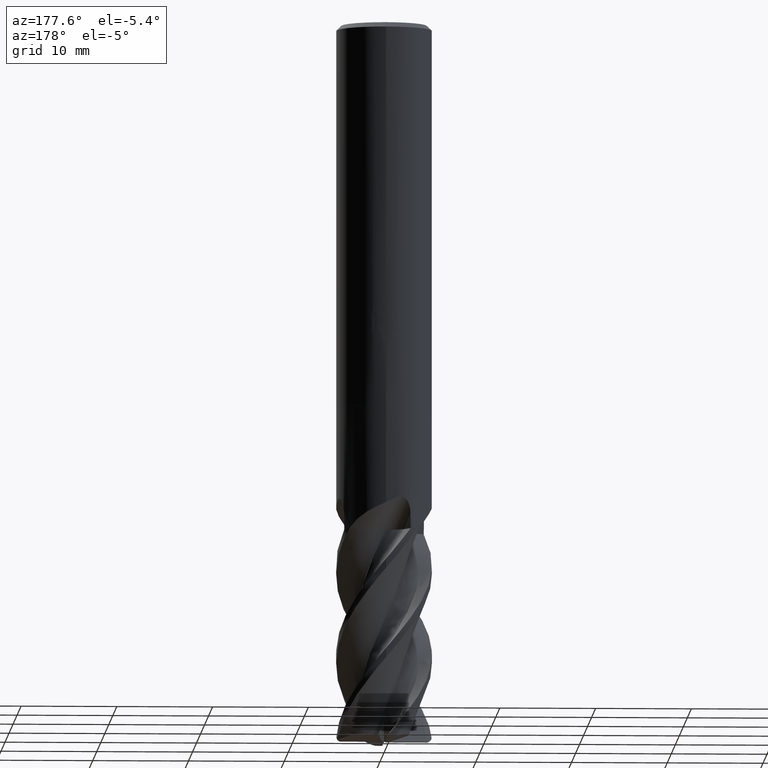
[diagram: clean part render]
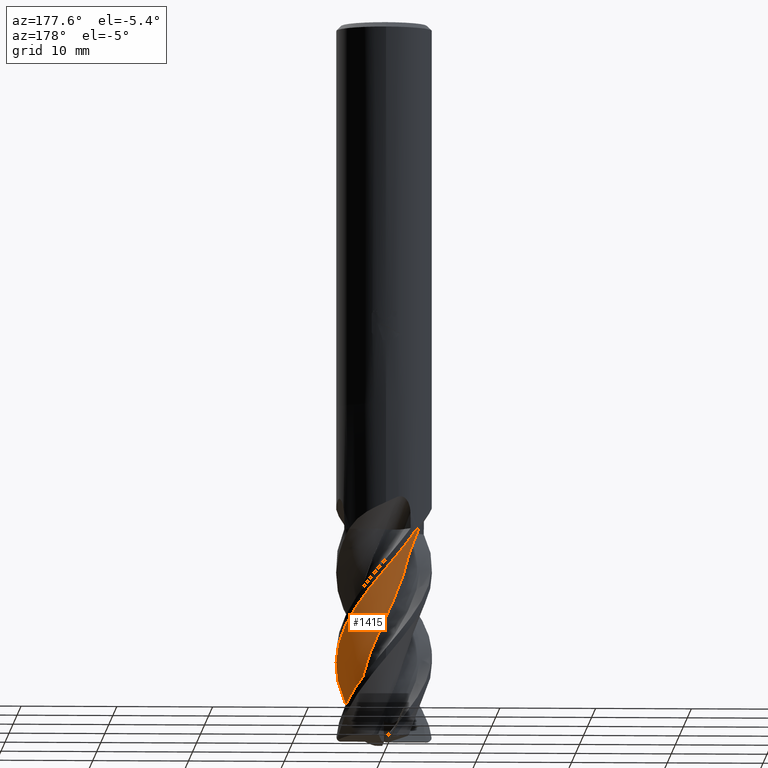
[diagram: same view with one face highlighted and labeled with its STEP entity id]
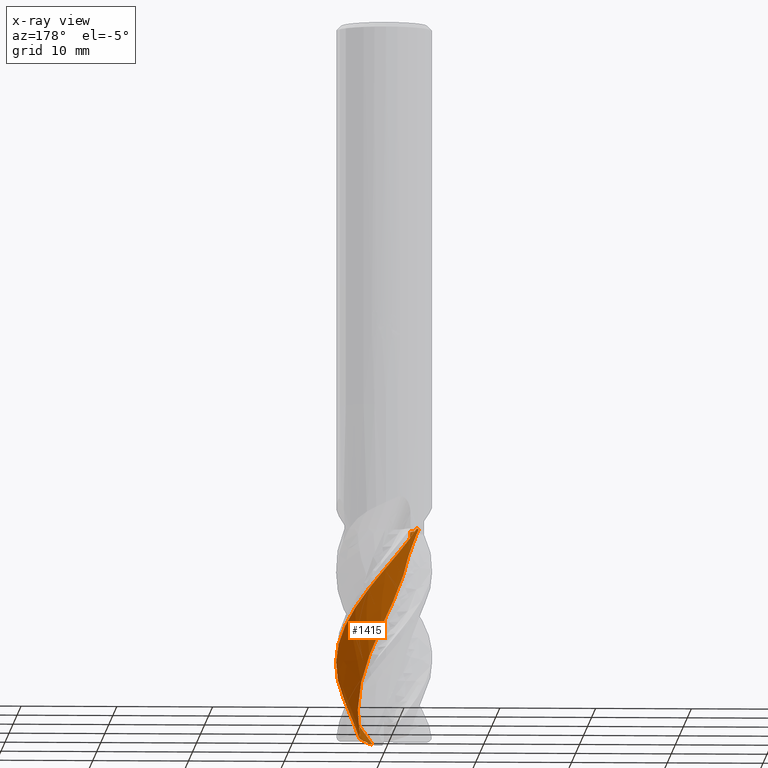
[diagram: x-ray of the same camera — body ghosted, the highlighted face saturated]
A machine part, auxiliary view. The second image highlights one B-rep face of the part: STEP entity #1415.
The next image is the same camera in x-ray: the body ghosted, the highlighted face saturated — about 0% of this face is hidden behind the body in this view.
In plain terms, the highlighted face is a freeform B-spline surface patch.
Its self-contained STEP definition (entity closure, byte-faithful):
#549=EDGE_CURVE('',#1233,#1143,#1584,.T.);
#579=EDGE_CURVE('',#1233,#877,#1616,.T.);
#603=EDGE_CURVE('',#811,#1163,#1643,.T.);
#673=EDGE_CURVE('',#1009,#823,#1720,.T.);
#811=VERTEX_POINT('',#1871);
#823=VERTEX_POINT('',#1883);
#877=VERTEX_POINT('',#1942);
#1009=VERTEX_POINT('',#2081);
#1053=VERTEX_POINT('',#2131);
#1067=EDGE_CURVE('',#823,#1143,#2146,.T.);
#1143=VERTEX_POINT('',#2231);
#1163=VERTEX_POINT('',#2252);
#1169=EDGE_CURVE('',#1053,#1009,#2260,.T.);
#1185=EDGE_CURVE('',#877,#811,#2277,.T.);
#1233=VERTEX_POINT('',#2329);
#1385=EDGE_CURVE('',#1163,#1053,#2500,.T.);
#1415=ADVANCED_FACE('',(#2532),#2533,.T.);
#1584=B_SPLINE_CURVE_WITH_KNOTS('',3,(#2762,#2763,#2764,#2765,#2766,#2767,#2768,#2769,#2770,#2771,#2772,#2773,#2774,#2775,#2776,#2777,#2778,#2779,#2780,#2781,#2782,#2783,#2784,#2785,#2786,#2787,#2788,#2789,#2790,#2791,#2792,#2793,#2794,#2795,#2796,#2797,#2798,#2799,#2800,#2801,#2802,#2803,#2804,#2805,#2806,#2807,#2808,#2809,#2810,#2811,#2812,#2813,#2814),.UNSPECIFIED.,.F.,.F.,(4,1,2,1,2,1,2,1,2,1,2,1,2,1,2,1,2,1,2,1,2,1,2,1,2,1,2,1,2,1,2,1,2,1,4),(0.0,0.658549239123413,1.31709847824683,1.97564771737024,2.63419695649365,3.95129543474048,5.2683939129873,6.58549239123413,7.90259086948096,9.21968934772778,10.5367878259746,11.8538863042214,13.1709847824683,14.4880832607151,15.8051817389619,17.1222802172087,18.4393786954556,19.7564771737024,21.0735756519492,22.390674130196,23.7077726084429,25.0248710866897,26.3419695649365,27.6590680431833,28.9761665214302,30.293264999677,31.6103634779238,32.9274619561707,34.2445604344175,35.5616589126643,36.8787573909111,38.195855869158,39.5129543474048,40.8300528256516,42.1471513038984),.UNSPECIFIED.);
#1616=B_SPLINE_CURVE_WITH_KNOTS('',3,(#3395,#3396,#3397,#3398,#3399,#3400,#3401,#3402),.UNSPECIFIED.,.F.,.F.,(4,2,2,4),(0.0,1.35356771246786,2.67881120581007,4.14397320528396),.UNSPECIFIED.);
#1643=B_SPLINE_CURVE_WITH_KNOTS('',3,(#3483,#3484,#3485,#3486,#3487,#3488,#3489,#3490,#3491,#3492,#3493,#3494,#3495,#3496,#3497,#3498,#3499,#3500,#3501,#3502,#3503,#3504,#3505,#3506,#3507,#3508,#3509,#3510,#3511,#3512,#3513,#3514,#3515,#3516,#3517,#3518,#3519,#3520,#3521,#3522),.UNSPECIFIED.,.F.,.F.,(4,2,2,2,2,2,2,2,2,2,2,2,2,2,2,2,2,2,2,4),(0.0,2.2456682764679,2.88459638196304,4.28304665093006,5.98188310676537,6.52038499764243,7.78764744862146,10.0926702157353,11.1932099832394,13.2199946943332,14.5397078260316,16.1797539945238,17.5713621634584,19.7414092903107,20.6562944861559,22.1265670036156,22.6811434000191,23.8996684143941,25.1948273827751,26.5129071272812),.UNSPECIFIED.);
#1720=B_SPLINE_CURVE_WITH_KNOTS('',3,(#4220,#4221,#4222,#4223,#4224,#4225,#4226,#4227),.UNSPECIFIED.,.F.,.F.,(4,2,2,4),(0.0,1.55395800995072,2.99564373161464,4.43728701716926),.UNSPECIFIED.);
#1871=CARTESIAN_POINT('',(1.21282587753809,-4.85067556024663,-74.5));
#1883=CARTESIAN_POINT('',(-3.51485827910795,2.68852362562381,-53.0));
#1942=CARTESIAN_POINT('',(1.14413936483831,-4.72098230904481,-74.8494124073381));
#2081=CARTESIAN_POINT('',(-3.27735574731752,3.75916761069031,-53.0));
#2131=CARTESIAN_POINT('',(-3.26797763358509,3.78408802703999,-53.0));
#2146=B_SPLINE_CURVE_WITH_KNOTS('',3,(#7376,#7377,#7378,#7379,#7380,#7381,#7382,#7383),.UNSPECIFIED.,.F.,.F.,(4,2,2,4),(0.0,1.55395800995072,2.99564373161464,4.43728701716926),.UNSPECIFIED.);
#2231=CARTESIAN_POINT('',(-2.73875652295535,-0.00705434222565993,-53.0));
#2252=CARTESIAN_POINT('',(-3.29536953540391E-016,4.999919712407,-57.2381675055824));
#2260=B_SPLINE_CURVE_WITH_KNOTS('',3,(#7868,#7869,#7870,#7871,#7872,#7873,#7874,#7875),.UNSPECIFIED.,.F.,.F.,(4,2,2,4),(0.0,1.55395800995072,2.99564373161464,4.43728701716926),.UNSPECIFIED.);
#2277=B_SPLINE_CURVE_WITH_KNOTS('',3,(#7937,#7938,#7939,#7940,#7941,#7942,#7943,#7944,#7945,#7946,#7947,#7948,#7949,#7950,#7951,#7952,#7953,#7954,#7955,#7956,#7957,#7958),.UNSPECIFIED.,.F.,.F.,(4,2,2,2,2,2,2,2,2,2,4),(0.0,0.602373743548234,1.11069060328894,1.4293281599703,1.62629304112746,1.7529199232569,1.91069403200639,2.02791076422509,2.08273615207542,2.10502879621802,2.12619765103558),.UNSPECIFIED.);
#2329=CARTESIAN_POINT('',(2.46460790427425,-1.19390406016006,-74.4203661706195));
#2500=B_SPLINE_CURVE_WITH_KNOTS('',3,(#9251,#9252,#9253,#9254,#9255,#9256,#9257,#9258,#9259,#9260,#9261,#9262,#9263,#9264,#9265,#9266,#9267,#9268,#9269,#9270,#9271,#9272,#9273,#9274,#9275,#9276,#9277,#9278,#9279,#9280,#9281,#9282,#9283,#9284,#9285,#9286,#9287,#9288,#9289,#9290),.UNSPECIFIED.,.F.,.F.,(4,2,2,2,2,2,2,2,2,2,2,2,2,2,2,2,2,2,2,4),(0.0,2.2456682764679,2.88459638196304,4.28304665093006,5.98188310676537,6.52038499764243,7.78764744862146,10.0926702157353,11.1932099832394,13.2199946943332,14.5397078260316,16.1797539945238,17.5713621634584,19.7414092903107,20.6562944861559,22.1265670036156,22.6811434000191,23.8996684143941,25.1948273827751,26.5129071272812),.UNSPECIFIED.);
#2532=FACE_OUTER_BOUND('',#9857,.T.);
#2533=B_SPLINE_SURFACE_WITH_KNOTS('',3,3,((#9858,#9859,#9860,#9861,#9862,#9863,#9864,#9865,#9866,#9867,#9868,#9869,#9870,#9871,#9872,#9873,#9874,#9875,#9876,#9877,#9878,#9879,#9880,#9881,#9882,#9883,#9884,#9885,#9886,#9887,#9888,#9889,#9890,#9891,#9892,#9893,#9894,#9895,#9896,#9897,#9898,#9899,#9900,#9901,#9902,#9903,#9904,#9905,#9906,#9907,#9908,#9909,#9910),(#9911,#9912,#9913,#9914,#9915,#9916,#9917,#9918,#9919,#9920,#9921,#9922,#9923,#9924,#9925,#9926,#9927,#9928,#9929,#9930,#9931,#9932,#9933,#9934,#9935,#9936,#9937,#9938,#9939,#9940,#9941,#9942,#9943,#9944,#9945,#9946,#9947,#9948,#9949,#9950,#9951,#9952,#9953,#9954,#9955,#9956,#9957,#9958,#9959,#9960,#9961,#9962,#9963),(#9964,#9965,#9966,#9967,#9968,#9969,#9970,#9971,#9972,#9973,#9974,#9975,#9976,#9977,#9978,#9979,#9980,#9981,#9982,#9983,#9984,#9985,#9986,#9987,#9988,#9989,#9990,#9991,#9992,#9993,#9994,#9995,#9996,#9997,#9998,#9999,#10000,#10001,#10002,#10003,#10004,#10005,#10006,#10007,#10008,#10009,#10010,#10011,#10012,#10013,#10014,#10015,#10016),(#10017,#10018,#10019,#10020,#10021,#10022,#10023,#10024,#10025,#10026,#10027,#10028,#10029,#10030,#10031,#10032,#10033,#10034,#10035,#10036,#10037,#10038,#10039,#10040,#10041,#10042,#10043,#10044,#10045,#10046,#10047,#10048,#10049,#10050,#10051,#10052,#10053,#10054,#10055,#10056,#10057,#10058,#10059,#10060,#10061,#10062,#10063,#10064,#10065,#10066,#10067,#10068,#10069),(#10070,#10071,#10072,#10073,#10074,#10075,#10076,#10077,#10078,#10079,#10080,#10081,#10082,#10083,#10084,#10085,#10086,#10087,#10088,#10089,#10090,#10091,#10092,#10093,#10094,#10095,#10096,#10097,#10098,#10099,#10100,#10101,#10102,#10103,#10104,#10105,#10106,#10107,#10108,#10109,#10110,#10111,#10112,#10113,#10114,#10115,#10116,#10117,#10118,#10119,#10120,#10121,#10122),(#10123,#10124,#10125,#10126,#10127,#10128,#10129,#10130,#10131,#10132,#10133,#10134,#10135,#10136,#10137,#10138,#10139,#10140,#10141,#10142,#10143,#10144,#10145,#10146,#10147,#10148,#10149,#10150,#10151,#10152,#10153,#10154,#10155,#10156,#10157,#10158,#10159,#10160,#10161,#10162,#10163,#10164,#10165,#10166,#10167,#10168,#10169,#10170,#10171,#10172,#10173,#10174,#10175)),.UNSPECIFIED.,.F.,.F.,.F.,(4,1,1,4),(4,1,2,1,2,1,2,1,2,1,2,1,2,1,2,1,2,1,2,1,2,1,2,1,2,1,2,1,2,1,2,1,2,1,4),(-1.11221997675852,-0.695137485474076,-0.27805499418963,0.0),(0.0,0.658549239123413,1.31709847824683,1.97564771737024,2.63419695649365,3.95129543474048,5.2683939129873,6.58549239123413,7.90259086948096,9.21968934772778,10.5367878259746,11.8538863042214,13.1709847824683,14.4880832607151,15.8051817389619,17.1222802172087,18.4393786954556,19.7564771737024,21.0735756519492,22.390674130196,23.7077726084429,25.0248710866897,26.3419695649365,27.6590680431833,28.9761665214302,30.293264999677,31.6103634779238,32.9274619561707,34.2445604344175,35.5616589126643,36.8787573909111,38.195855869158,39.5129543474048,40.8300528256516,42.1471513038984),.UNSPECIFIED.);
#2762=CARTESIAN_POINT('',(-1.54516668842389,-2.28963209410875,-85.0));
#2763=CARTESIAN_POINT('',(-1.53885538904449,-2.27711614484176,-84.7812292667592));
#2764=CARTESIAN_POINT('',(-1.47842498813173,-2.29675630574485,-84.3442583540667));
#2765=CARTESIAN_POINT('',(-1.31093493866085,-2.39618950954364,-83.9074373138978));
#2766=CARTESIAN_POINT('',(-1.07979869520854,-2.51729300989652,-83.4693852564669));
#2767=CARTESIAN_POINT('',(-0.857556969136176,-2.61088868514889,-83.0311268200588));
#2768=CARTESIAN_POINT('',(-0.658984443971673,-2.663402519449,-82.5933388644091));
#2769=CARTESIAN_POINT('',(-0.378189797661917,-2.72058278647042,-81.9374989838115));
#2770=CARTESIAN_POINT('',(0.00386652439016535,-2.7580081583736,-81.0630484563422));
#2771=CARTESIAN_POINT('',(0.403491898813342,-2.71497573896403,-80.188337908122));
#2772=CARTESIAN_POINT('',(0.809094021887897,-2.6247684682505,-79.3130007471608));
#2773=CARTESIAN_POINT('',(1.19014872501744,-2.49052016510919,-78.4375967378449));
#2774=CARTESIAN_POINT('',(1.53027237350597,-2.27972701751446,-77.5626664026407));
#2775=CARTESIAN_POINT('',(1.85218991653991,-2.02805513031576,-76.6877877926039));
#2776=CARTESIAN_POINT('',(2.13717517093477,-1.74633615326569,-75.8127657583193));
#2777=CARTESIAN_POINT('',(2.35579931939123,-1.41017247918134,-74.9378827295317));
#2778=CARTESIAN_POINT('',(2.54021924642646,-1.04460548315103,-74.0628467444434));
#2779=CARTESIAN_POINT('',(2.6778407527134,-0.668162625868259,-73.187710994094));
#2780=CARTESIAN_POINT('',(2.73217189782097,-0.271168857998938,-72.3128225416456));
#2781=CARTESIAN_POINT('',(2.74312192269017,0.138212789014099,-71.4378306420857));
#2782=CARTESIAN_POINT('',(2.70710035541623,0.537586913149116,-70.5627231251657));
#2783=CARTESIAN_POINT('',(2.58691711963676,0.919911491493806,-69.6878339859729));
#2784=CARTESIAN_POINT('',(2.42227687267091,1.29476327642032,-68.8128319980391));
#2785=CARTESIAN_POINT('',(2.21943888833463,1.64054932391917,-67.9377190255422));
#2786=CARTESIAN_POINT('',(1.94772410072545,1.93512151942855,-67.0628304623835));
#2787=CARTESIAN_POINT('',(1.63893299528151,2.20402171758877,-66.1878298185554));
#2788=CARTESIAN_POINT('',(1.3079824728976,2.43033018651714,-65.31271741827));
#2789=CARTESIAN_POINT('',(0.936581148859283,2.58092069188909,-64.4378288135361));
#2790=CARTESIAN_POINT('',(0.542600027181607,2.69247430005632,-63.5628282618585));
#2791=CARTESIAN_POINT('',(0.146740956217836,2.75605007829402,-62.6877157987768));
#2792=CARTESIAN_POINT('',(-0.253408844955223,2.73388690469318,-61.8128272057936));
#2793=CARTESIAN_POINT('',(-0.657332636238802,2.66678787803254,-60.9378268916048));
#2794=CARTESIAN_POINT('',(-1.0424991061575,2.55549300668879,-60.0627145914269));
#2795=CARTESIAN_POINT('',(-1.39498826407193,2.36481764871812,-59.1878258807344));
#2796=CARTESIAN_POINT('',(-1.73172930702795,2.1318891964406,-58.3128253117123));
#2797=CARTESIAN_POINT('',(-2.03265704497206,1.86698528707705,-57.4377129302223));
#2798=CARTESIAN_POINT('',(-2.27018092531175,1.54421744114839,-56.5628246170929));
#2799=CARTESIAN_POINT('',(-2.47544600581518,1.18994558471829,-55.6878247254426));
#2800=CARTESIAN_POINT('',(-2.63469794289289,0.822004028953707,-54.8127124629295));
#2801=CARTESIAN_POINT('',(-2.71192433318979,0.428729992164942,-53.9378215030608));
#2802=CARTESIAN_POINT('',(-2.74652734928208,0.0207167174466705,-53.0628170450319));
#2803=CARTESIAN_POINT('',(-2.73366457611202,-0.379984478908915,-52.1877048074863));
#2804=CARTESIAN_POINT('',(-2.63582336092695,-0.768629248080088,-51.3128259144743));
#2805=CARTESIAN_POINT('',(-2.49312494489055,-1.15249769622584,-50.4378393320511));
#2806=CARTESIAN_POINT('',(-2.31057967067948,-1.50953827158079,-49.5627238537622));
#2807=CARTESIAN_POINT('',(-2.05648064378277,-1.81908525907831,-48.6878030561922));
#2808=CARTESIAN_POINT('',(-1.76416971665897,-2.10495701066665,-47.8127628479189));
#2809=CARTESIAN_POINT('',(-1.44709763308097,-2.35006214373195,-46.9376674171375));
#2810=CARTESIAN_POINT('',(-1.08360367373984,-2.52294632356871,-46.0628595544773));
#2811=CARTESIAN_POINT('',(-0.6939849794459,-2.65816445230631,-45.1879348089067));
#2812=CARTESIAN_POINT('',(-0.30229282939794,-2.74355809532533,-44.3127512181268));
#2813=CARTESIAN_POINT('',(0.0903922227422046,-2.74317943762858,-43.437772565622));
#2814=CARTESIAN_POINT('',(0.288064731595738,-2.72188458600727,-43.0002995630552));
#3395=CARTESIAN_POINT('',(2.46460790427425,-1.19390406016005,-74.4203661706195));
#3396=CARTESIAN_POINT('',(2.55648147290414,-1.63463057564325,-74.3905146386085));
#3397=CARTESIAN_POINT('',(2.56841950733228,-2.08617616134088,-74.3866357362034));
#3398=CARTESIAN_POINT('',(2.41792712454261,-2.96390378774281,-74.4355336755048));
#3399=CARTESIAN_POINT('',(2.26184622076031,-3.37402649899353,-74.486247435233));
#3400=CARTESIAN_POINT('',(1.78178253560446,-4.15423576786908,-74.6422295819863));
#3401=CARTESIAN_POINT('',(1.45058699658064,-4.50168189143142,-74.7498415359211));
#3402=CARTESIAN_POINT('',(1.06713389811704,-4.77795838050743,-74.8744330001935));
#3483=CARTESIAN_POINT('',(1.21282587753807,-4.85067556024663,-74.5));
#3484=CARTESIAN_POINT('',(1.68461487075908,-4.73271031464507,-73.9309344766993));
#3485=CARTESIAN_POINT('',(2.13289682949824,-4.54749943741901,-73.348582572322));
#3486=CARTESIAN_POINT('',(2.6620725517447,-4.23459839635782,-72.6109327372843));
#3487=CARTESIAN_POINT('',(2.77677043536298,-4.16031578539923,-72.4476608082026));
#3488=CARTESIAN_POINT('',(3.13342181089695,-3.90787679230616,-71.9289264563861));
#3489=CARTESIAN_POINT('',(3.36039429320089,-3.71455306522135,-71.5835687887609));
#3490=CARTESIAN_POINT('',(3.82624451607814,-3.23927839528752,-70.7889538006054));
#3491=CARTESIAN_POINT('',(4.05237548845392,-2.95147126200266,-70.3482077708845));
#3492=CARTESIAN_POINT('',(4.30624849675544,-2.5434975920939,-69.7741183381611));
#3493=CARTESIAN_POINT('',(4.36413058040529,-2.44288651619288,-69.6361336064954));
#3494=CARTESIAN_POINT('',(4.5468518625251,-2.09784823978402,-69.1749579855758));
#3495=CARTESIAN_POINT('',(4.6546742528047,-1.84660646812593,-68.8562928379187));
#3496=CARTESIAN_POINT('',(4.90132363035974,-1.10853722349132,-67.9254959342216));
#3497=CARTESIAN_POINT('',(4.98876239927978,-0.608206829745712,-67.3144128452927));
#3498=CARTESIAN_POINT('',(5.00382331794888,0.142095069803362,-66.4330333733355));
#3499=CARTESIAN_POINT('',(4.99117070950757,0.386251935577487,-66.1453934901602));
#3500=CARTESIAN_POINT('',(4.90219272724183,1.08452804000454,-65.3026880332056));
#3501=CARTESIAN_POINT('',(4.78258035091283,1.5292232241987,-64.7486141284904));
#3502=CARTESIAN_POINT('',(4.4855681547616,2.22914525680205,-63.8519294569241));
#3503=CARTESIAN_POINT('',(4.34400691085948,2.49417346103154,-63.5005094886225));
#3504=CARTESIAN_POINT('',(3.97061170865398,3.06194066432396,-62.6858303759184));
#3505=CARTESIAN_POINT('',(3.72818914558875,3.35314200894495,-62.229874346777));
#3506=CARTESIAN_POINT('',(3.2218750745632,3.83695817759101,-61.398611565827));
#3507=CARTESIAN_POINT('',(2.97044399776156,4.03479458397031,-61.0278226034985));
#3508=CARTESIAN_POINT('',(2.27658296177822,4.47981452200203,-60.0417754629577));
#3509=CARTESIAN_POINT('',(1.81280996529519,4.68735122729481,-59.4305583567738));
#3510=CARTESIAN_POINT('',(1.11612687723087,4.87846507344828,-58.5823712953303));
#3511=CARTESIAN_POINT('',(0.904721469940956,4.92226842257157,-58.3285314168885));
#3512=CARTESIAN_POINT('',(0.338975103702527,5.00082763666641,-57.64593784219));
#3513=CARTESIAN_POINT('',(-0.0138715962275309,5.01227943039543,-57.220781129511));
#3514=CARTESIAN_POINT('',(-0.497422522248474,4.9768839524797,-56.6413267120745));
#3515=CARTESIAN_POINT('',(-0.629938941803916,4.96188002411728,-56.4828614715512));
#3516=CARTESIAN_POINT('',(-1.05286791718865,4.89664113508756,-55.9782493085683));
#3517=CARTESIAN_POINT('',(-1.33907945476786,4.82642427289013,-55.6335073454247));
#3518=CARTESIAN_POINT('',(-1.91926221068308,4.62767435010724,-54.8984278917671));
#3519=CARTESIAN_POINT('',(-2.20814941359164,4.49704885464521,-54.5167631546108));
#3520=CARTESIAN_POINT('',(-2.76279212633812,4.1797007017224,-53.7537187845359));
#3521=CARTESIAN_POINT('',(-3.02418297191448,3.99463397881083,-53.3832972272639));
#3522=CARTESIAN_POINT('',(-3.26797763358505,3.78408802704005,-53.0));
#4220=CARTESIAN_POINT('',(-3.09328565480652,4.17795578713016,-53.0));
#4221=CARTESIAN_POINT('',(-3.32863304226522,3.71652203581955,-53.0));
#4222=CARTESIAN_POINT('',(-3.47160343900252,3.21353291675498,-53.0));
#4223=CARTESIAN_POINT('',(-3.55361305107733,2.21835913436387,-53.0));
#4224=CARTESIAN_POINT('',(-3.50596477395292,1.73621024299966,-53.0));
#4225=CARTESIAN_POINT('',(-3.24106465959036,0.812328196172827,-53.0));
#4226=CARTESIAN_POINT('',(-3.02599776105416,0.378196692979864,-53.0));
#4227=CARTESIAN_POINT('',(-2.73875652295535,-0.00705434222566426,-53.0));
#7376=CARTESIAN_POINT('',(-3.09328565480652,4.17795578713016,-53.0));
#7377=CARTESIAN_POINT('',(-3.32863304226522,3.71652203581955,-53.0));
#7378=CARTESIAN_POINT('',(-3.47160343900252,3.21353291675498,-53.0));
#7379=CARTESIAN_POINT('',(-3.55361305107733,2.21835913436387,-53.0));
#7380=CARTESIAN_POINT('',(-3.50596477395292,1.73621024299966,-53.0));
#7381=CARTESIAN_POINT('',(-3.24106465959036,0.812328196172827,-53.0));
#7382=CARTESIAN_POINT('',(-3.02599776105416,0.378196692979864,-53.0));
#7383=CARTESIAN_POINT('',(-2.73875652295535,-0.00705434222566426,-53.0));
#7868=CARTESIAN_POINT('',(-3.09328565480652,4.17795578713016,-53.0));
#7869=CARTESIAN_POINT('',(-3.32863304226522,3.71652203581955,-53.0));
#7870=CARTESIAN_POINT('',(-3.47160343900252,3.21353291675498,-53.0));
#7871=CARTESIAN_POINT('',(-3.55361305107733,2.21835913436387,-53.0));
#7872=CARTESIAN_POINT('',(-3.50596477395292,1.73621024299966,-53.0));
#7873=CARTESIAN_POINT('',(-3.24106465959036,0.812328196172827,-53.0));
#7874=CARTESIAN_POINT('',(-3.02599776105416,0.378196692979864,-53.0));
#7875=CARTESIAN_POINT('',(-2.73875652295535,-0.00705434222566426,-53.0));
#7937=CARTESIAN_POINT('',(1.87425986986043,-3.7550147002263,-74.8975667238081));
#7938=CARTESIAN_POINT('',(1.75975822809468,-3.90679340357556,-74.9621401274313));
#7939=CARTESIAN_POINT('',(1.63306952872999,-4.07234242912262,-74.9979945889831));
#7940=CARTESIAN_POINT('',(1.40471313825268,-4.36266487246737,-75.0015423536943));
#7941=CARTESIAN_POINT('',(1.30979448008324,-4.48120959324828,-74.9788013449895));
#7942=CARTESIAN_POINT('',(1.19419287439004,-4.63915371779838,-74.9108389406869));
#7943=CARTESIAN_POINT('',(1.15938090853958,-4.69125950201603,-74.8774115101569));
#7944=CARTESIAN_POINT('',(1.12361178619833,-4.76002271908091,-74.8136351292256));
#7945=CARTESIAN_POINT('',(1.11386907472319,-4.78438766125654,-74.7852991857127));
#7946=CARTESIAN_POINT('',(1.10933281224353,-4.81750624155487,-74.731997922935));
#7947=CARTESIAN_POINT('',(1.11051188401492,-4.82829323942363,-74.7101445610487));
#7948=CARTESIAN_POINT('',(1.12031594563781,-4.84720411319401,-74.6591235507241));
#7949=CARTESIAN_POINT('',(1.1304051673546,-4.85345341996936,-74.6310238561729));
#7950=CARTESIAN_POINT('',(1.15403751225176,-4.85827770727193,-74.5832846370492));
#7951=CARTESIAN_POINT('',(1.16586884064805,-4.85837855233924,-74.563635724925));
#7952=CARTESIAN_POINT('',(1.1848033607625,-4.85633605538075,-74.5361101470757));
#7953=CARTESIAN_POINT('',(1.19108144007472,-4.85535751454455,-74.5275192865978));
#7954=CARTESIAN_POINT('',(1.20016638862804,-4.85358172490218,-74.5157111678355));
#7955=CARTESIAN_POINT('',(1.20282408561577,-4.85302113952336,-74.5123280958042));
#7956=CARTESIAN_POINT('',(1.20805923805465,-4.85184144576821,-74.5057933347963));
#7957=CARTESIAN_POINT('',(1.21062469089311,-4.85122910902354,-74.502649797011));
#7958=CARTESIAN_POINT('',(1.21323753990824,-4.85057235907829,-74.4995039049981));
#9251=CARTESIAN_POINT('',(1.21282587753807,-4.85067556024663,-74.5));
#9252=CARTESIAN_POINT('',(1.68461487075908,-4.73271031464507,-73.9309344766993));
#9253=CARTESIAN_POINT('',(2.13289682949824,-4.54749943741901,-73.348582572322));
#9254=CARTESIAN_POINT('',(2.6620725517447,-4.23459839635782,-72.6109327372843));
#9255=CARTESIAN_POINT('',(2.77677043536298,-4.16031578539923,-72.4476608082026));
#9256=CARTESIAN_POINT('',(3.13342181089695,-3.90787679230616,-71.9289264563861));
#9257=CARTESIAN_POINT('',(3.36039429320089,-3.71455306522135,-71.5835687887609));
#9258=CARTESIAN_POINT('',(3.82624451607814,-3.23927839528752,-70.7889538006054));
#9259=CARTESIAN_POINT('',(4.05237548845392,-2.95147126200266,-70.3482077708845));
#9260=CARTESIAN_POINT('',(4.30624849675544,-2.5434975920939,-69.7741183381611));
#9261=CARTESIAN_POINT('',(4.36413058040529,-2.44288651619288,-69.6361336064954));
#9262=CARTESIAN_POINT('',(4.5468518625251,-2.09784823978402,-69.1749579855758));
#9263=CARTESIAN_POINT('',(4.6546742528047,-1.84660646812593,-68.8562928379187));
#9264=CARTESIAN_POINT('',(4.90132363035974,-1.10853722349132,-67.9254959342216));
#9265=CARTESIAN_POINT('',(4.98876239927978,-0.608206829745712,-67.3144128452927));
#9266=CARTESIAN_POINT('',(5.00382331794888,0.142095069803362,-66.4330333733355));
#9267=CARTESIAN_POINT('',(4.99117070950757,0.386251935577487,-66.1453934901602));
#9268=CARTESIAN_POINT('',(4.90219272724183,1.08452804000454,-65.3026880332056));
#9269=CARTESIAN_POINT('',(4.78258035091283,1.5292232241987,-64.7486141284904));
#9270=CARTESIAN_POINT('',(4.4855681547616,2.22914525680205,-63.8519294569241));
#9271=CARTESIAN_POINT('',(4.34400691085948,2.49417346103154,-63.5005094886225));
#9272=CARTESIAN_POINT('',(3.97061170865398,3.06194066432396,-62.6858303759184));
#9273=CARTESIAN_POINT('',(3.72818914558875,3.35314200894495,-62.229874346777));
#9274=CARTESIAN_POINT('',(3.2218750745632,3.83695817759101,-61.398611565827));
#9275=CARTESIAN_POINT('',(2.97044399776156,4.03479458397031,-61.0278226034985));
#9276=CARTESIAN_POINT('',(2.27658296177822,4.47981452200203,-60.0417754629577));
#9277=CARTESIAN_POINT('',(1.81280996529519,4.68735122729481,-59.4305583567738));
#9278=CARTESIAN_POINT('',(1.11612687723087,4.87846507344828,-58.5823712953303));
#9279=CARTESIAN_POINT('',(0.904721469940956,4.92226842257157,-58.3285314168885));
#9280=CARTESIAN_POINT('',(0.338975103702527,5.00082763666641,-57.64593784219));
#9281=CARTESIAN_POINT('',(-0.0138715962275309,5.01227943039543,-57.220781129511));
#9282=CARTESIAN_POINT('',(-0.497422522248474,4.9768839524797,-56.6413267120745));
#9283=CARTESIAN_POINT('',(-0.629938941803916,4.96188002411728,-56.4828614715512));
#9284=CARTESIAN_POINT('',(-1.05286791718865,4.89664113508756,-55.9782493085683));
#9285=CARTESIAN_POINT('',(-1.33907945476786,4.82642427289013,-55.6335073454247));
#9286=CARTESIAN_POINT('',(-1.91926221068308,4.62767435010724,-54.8984278917671));
#9287=CARTESIAN_POINT('',(-2.20814941359164,4.49704885464521,-54.5167631546108));
#9288=CARTESIAN_POINT('',(-2.76279212633812,4.1797007017224,-53.7537187845359));
#9289=CARTESIAN_POINT('',(-3.02418297191448,3.99463397881083,-53.3832972272639));
#9290=CARTESIAN_POINT('',(-3.26797763358505,3.78408802704005,-53.0));
#9857=EDGE_LOOP('',(#12139,#12140,#12141,#12142,#12143,#12144,#12145,#12146));
#9858=CARTESIAN_POINT('',(-5.19564065181808,-0.212880755921786,-85.0));
#9859=CARTESIAN_POINT('',(-5.19528896899668,-0.210840523108685,-84.7812533060796));
#9860=CARTESIAN_POINT('',(-5.19262000152066,-0.329104450416476,-84.3437849701377));
#9861=CARTESIAN_POINT('',(-5.15720838666471,-0.698156057693048,-83.9063194146389));
#9862=CARTESIAN_POINT('',(-5.06724983328956,-1.18412517042939,-83.4687846668436));
#9863=CARTESIAN_POINT('',(-4.95066959815788,-1.6258080788228,-83.0312400607042));
#9864=CARTESIAN_POINT('',(-4.80678529559667,-1.98790248497123,-82.5937244100696));
#9865=CARTESIAN_POINT('',(-4.58167644573462,-2.48334600477754,-81.9374991212977));
#9866=CARTESIAN_POINT('',(-4.21308866800315,-3.1124930419534,-81.0625306906419));
#9867=CARTESIAN_POINT('',(-3.69741334506329,-3.67535099073422,-80.18754608057));
#9868=CARTESIAN_POINT('',(-3.10075043423194,-4.19091508479844,-79.3125255949288));
#9869=CARTESIAN_POINT('',(-2.46686918229143,-4.62223000617779,-78.4375016487429));
#9870=CARTESIAN_POINT('',(-1.76206257485746,-4.90599867134783,-77.5625054330029));
#9871=CARTESIAN_POINT('',(-1.01465696081345,-5.11316721069335,-76.6875121025522));
#9872=CARTESIAN_POINT('',(-0.263476613937211,-5.23260956170409,-75.812510356592));
#9873=CARTESIAN_POINT('',(0.496704337358215,-5.1891784132298,-74.9375165796868));
#9874=CARTESIAN_POINT('',(1.26264874114258,-5.05769517508841,-74.0625139747907));
#9875=CARTESIAN_POINT('',(1.99313798260938,-4.84524745446909,-73.1875056220906));
#9876=CARTESIAN_POINT('',(2.66174257652028,-4.48213038475485,-72.3125116116579));
#9877=CARTESIAN_POINT('',(3.2986345850387,-4.03653488904372,-71.4375116028697));
#9878=CARTESIAN_POINT('',(3.86906648040869,-3.53266031969681,-70.5625048909418));
#9879=CARTESIAN_POINT('',(4.31902540947292,-2.91895656461911,-69.6875108191356));
#9880=CARTESIAN_POINT('',(4.70497442715972,-2.24449571494529,-68.812510214551));
#9881=CARTESIAN_POINT('',(5.0060094551045,-1.54567298538179,-67.9375031850283));
#9882=CARTESIAN_POINT('',(5.1513446554838,-0.798729842659481,-67.0625091524251));
#9883=CARTESIAN_POINT('',(5.21286759082186,-0.0239986321044236,-66.1875086289168));
#9884=CARTESIAN_POINT('',(5.18717408886289,0.736547975606162,-65.312501633337));
#9885=CARTESIAN_POINT('',(5.00010953513177,1.47418304785314,-64.4375075966329));
#9886=CARTESIAN_POINT('',(4.72538971847589,2.20119352641477,-63.5625070769928));
#9887=CARTESIAN_POINT('',(4.37782937448138,2.87817350137968,-62.6875000763131));
#9888=CARTESIAN_POINT('',(3.89408672852286,3.46560203942366,-61.8125060411278));
#9889=CARTESIAN_POINT('',(3.33559676218573,4.00604014437711,-60.9375055379588));
#9890=CARTESIAN_POINT('',(2.7325541567819,4.47016989292942,-60.0624985516363));
#9891=CARTESIAN_POINT('',(2.04451796694462,4.79523324811253,-59.1875045081713));
#9892=CARTESIAN_POINT('',(1.30891158377859,5.04592099399764,-58.3125039806076));
#9893=CARTESIAN_POINT('',(0.565550034571109,5.20858975362414,-57.4374969715561));
#9894=CARTESIAN_POINT('',(-0.195388415102191,5.20923516036395,-56.5625029559718));
#9895=CARTESIAN_POINT('',(-0.967644524787029,5.12232511664625,-55.6875025036197));
#9896=CARTESIAN_POINT('',(-1.70942758411799,4.95248993847634,-54.8124955685524));
#9897=CARTESIAN_POINT('',(-2.39806006686803,4.62856621927953,-53.9375013817362));
#9898=CARTESIAN_POINT('',(-3.05958111800413,4.22060810794623,-53.0625005308035));
#9899=CARTESIAN_POINT('',(-3.65808307645688,3.7506867067041,-52.1874933468299));
#9900=CARTESIAN_POINT('',(-4.14283087270737,3.16406527832638,-51.3124999242031));
#9901=CARTESIAN_POINT('',(-4.56728186515552,2.51287897874017,-50.4375006056701));
#9902=CARTESIAN_POINT('',(-4.90829711394863,1.83243908172948,-49.5624941632338));
#9903=CARTESIAN_POINT('',(-5.09642070179904,1.09564201272663,-48.6874980112799));
#9904=CARTESIAN_POINT('',(-5.20261347032714,0.32690041909609,-47.8124936206014));
#9905=CARTESIAN_POINT('',(-5.22134047541992,-0.433560673283972,-46.9374847087757));
#9906=CARTESIAN_POINT('',(-5.07682791801552,-1.18407766852295,-46.0624952101863));
#9907=CARTESIAN_POINT('',(-4.84240878439288,-1.93087930835864,-45.1875030282946));
#9908=CARTESIAN_POINT('',(-4.53291513029247,-2.62588910527389,-44.3124999411029));
#9909=CARTESIAN_POINT('',(-4.09258784894508,-3.22762257449782,-43.4375113878634));
#9910=CARTESIAN_POINT('',(-3.83791461669748,-3.50619996638202,-43.0000173472818));
#9911=CARTESIAN_POINT('',(-4.93170831188153,-0.698890583402566,-85.0));
#9912=CARTESIAN_POINT('',(-4.92996193077908,-0.696092947284563,-84.7812477506679));
#9913=CARTESIAN_POINT('',(-4.91397754171864,-0.807341292110573,-84.3438943676159));
#9914=CARTESIAN_POINT('',(-4.8450530967495,-1.1554182046048,-83.9065777578631));
#9915=CARTESIAN_POINT('',(-4.71394351749065,-1.61039232325535,-83.4689234610815));
#9916=CARTESIAN_POINT('',(-4.56135076663603,-2.02048812184465,-83.0312138907931));
#9917=CARTESIAN_POINT('',(-4.38983155369086,-2.35175907641763,-82.5936353125236));
#9918=CARTESIAN_POINT('',(-4.12803170015487,-2.80205611915486,-81.9374990878007));
#9919=CARTESIAN_POINT('',(-3.71680807694596,-3.36595882092604,-81.062650344573));
#9920=CARTESIAN_POINT('',(-3.17199793333922,-3.85298517041422,-80.1877290714326));
#9921=CARTESIAN_POINT('',(-2.55459795332904,-4.28751710924707,-79.3126353991727));
#9922=CARTESIAN_POINT('',(-1.90968256455268,-4.63800368947635,-78.4375236213831));
#9923=CARTESIAN_POINT('',(-1.21128746499442,-4.8411101604856,-77.5625426388667));
#9924=CARTESIAN_POINT('',(-0.479576978669588,-4.96738527067748,-76.6875758073932));
#9925=CARTESIAN_POINT('',(0.247346245427561,-5.00955578726724,-75.8125693808356));
#9926=CARTESIAN_POINT('',(0.967304632342906,-4.89574165991615,-74.9376011986691));
#9927=CARTESIAN_POINT('',(1.68447975893709,-4.69765686707511,-74.06259087394));
#9928=CARTESIAN_POINT('',(2.36005932335331,-4.42565813731645,-73.1875530875125));
#9929=CARTESIAN_POINT('',(2.96231584272816,-4.0160551497961,-72.3125834603296));
#9930=CARTESIAN_POINT('',(3.52668285680674,-3.53100188078726,-71.4375853381298));
#9931=CARTESIAN_POINT('',(4.02202295932162,-2.99666159221371,-70.5625553196575));
#9932=CARTESIAN_POINT('',(4.39213218268037,-2.36920667551295,-69.6875855047846));
#9933=CARTESIAN_POINT('',(4.69567584227641,-1.68998484554419,-68.8125845749262));
#9934=CARTESIAN_POINT('',(4.91581677835287,-0.995623855171632,-67.9375530734487));
#9935=CARTESIAN_POINT('',(4.98306399199474,-0.270287300695489,-67.0625833922553));
#9936=CARTESIAN_POINT('',(4.96801014401761,0.473609609113089,-66.187582868747));
#9937=CARTESIAN_POINT('',(4.8710415849211,1.19562275738057,-65.3125514954746));
#9938=CARTESIAN_POINT('',(4.62255568680126,1.8804133420066,-64.4375818251621));
#9939=CARTESIAN_POINT('',(4.29171794267053,2.54687831696222,-63.562581305522));
#9940=CARTESIAN_POINT('',(3.89611908123473,3.15860988623854,-62.6875499380225));
#9941=CARTESIAN_POINT('',(3.37935419140072,3.6720488870408,-61.8125802397515));
#9942=CARTESIAN_POINT('',(2.79592274163156,4.13379401336348,-60.9375798233222));
#9943=CARTESIAN_POINT('',(2.17725155540812,4.51842182278383,-60.0625484693981));
#9944=CARTESIAN_POINT('',(1.49089623483933,4.76247966201422,-59.1875787715815));
#9945=CARTESIAN_POINT('',(0.766285263184281,4.93135345200095,-58.3125782440178));
#9946=CARTESIAN_POINT('',(0.0426874774931613,5.01544802894296,-57.4375468766799));
#9947=CARTESIAN_POINT('',(-0.682190065062341,4.94354004555916,-56.5625772905961));
#9948=CARTESIAN_POINT('',(-1.40961547698835,4.78731667625673,-55.6875769683535));
#9949=CARTESIAN_POINT('',(-2.1000159512834,4.55483384136963,-54.8125457052705));
#9950=CARTESIAN_POINT('',(-2.72508676617687,4.18065599903818,-53.937575334314));
#9951=CARTESIAN_POINT('',(-3.31649464572481,3.72911579492359,-53.062573702724));
#9952=CARTESIAN_POINT('',(-3.84180778539446,3.22444142665647,-52.1875422029763));
#9953=CARTESIAN_POINT('',(-4.24763551039344,2.61946779760515,-51.3125752566083));
#9954=CARTESIAN_POINT('',(-4.59007350468797,1.95875788933604,-50.4375788872251));
#9955=CARTESIAN_POINT('',(-4.85005276929156,1.27809651900164,-49.5625472518105));
#9956=CARTESIAN_POINT('',(-4.95901905427137,0.558346719320693,-48.6875684876759));
#9957=CARTESIAN_POINT('',(-4.987078207299,-0.184088051298559,-47.8125558567262));
#9958=CARTESIAN_POINT('',(-4.93242665538551,-0.910250465408659,-46.9375269300497));
#9959=CARTESIAN_POINT('',(-4.72327216801947,-1.61138370564588,-46.0625793946154));
#9960=CARTESIAN_POINT('',(-4.42898485131052,-2.3005710515269,-45.187602825869));
#9961=CARTESIAN_POINT('',(-4.06792450166377,-2.93311242747201,-44.3125580227236));
#9962=CARTESIAN_POINT('',(-3.59107400287422,-3.46419176548664,-43.4375717062665));
#9963=CARTESIAN_POINT('',(-3.32193239673216,-3.70526823833512,-43.0000825664777));
#9964=CARTESIAN_POINT('',(-4.19837080486259,-1.55898611572147,-85.0));
#9965=CARTESIAN_POINT('',(-4.19415622623915,-1.55408402993863,-84.7812378874733));
#9966=CARTESIAN_POINT('',(-4.15451624639231,-1.64567166614129,-84.3440885944495));
#9967=CARTESIAN_POINT('',(-4.02745796166754,-1.93763230747931,-83.9070364251788));
#9968=CARTESIAN_POINT('',(-3.82718159671149,-2.31322348051045,-83.4691698798203));
#9969=CARTESIAN_POINT('',(-3.61594680745214,-2.64492635976016,-83.0311674291838));
#9970=CARTESIAN_POINT('',(-3.40221311815042,-2.90287561588042,-82.5934771243328));
#9971=CARTESIAN_POINT('',(-3.08615117218122,-3.24738128321706,-81.9374990334592));
#9972=CARTESIAN_POINT('',(-2.61728169422502,-3.66279270438529,-81.0628627823106));
#9973=CARTESIAN_POINT('',(-2.04629960988529,-3.98587079248704,-80.1880539487006));
#9974=CARTESIAN_POINT('',(-1.42171887222268,-4.24960902677362,-79.3128303563869));
#9975=CARTESIAN_POINT('',(-0.788937096047607,-4.43381440617475,-78.4375626387699));
#9976=CARTESIAN_POINT('',(-0.137487195349984,-4.47835258411452,-77.5626086730264));
#9977=CARTESIAN_POINT('',(0.528618068881627,-4.44952467626,-76.6876889321772));
#9978=CARTESIAN_POINT('',(1.17434886692049,-4.3474557071164,-75.8126741659494));
#9979=CARTESIAN_POINT('',(1.78410703370605,-4.10993054714935,-74.9377514265612));
#9980=CARTESIAN_POINT('',(2.37559295228603,-3.7993114037967,-74.0627274086796));
#9981=CARTESIAN_POINT('',(2.91618867126283,-3.43147338355889,-73.1876373446808));
#9982=CARTESIAN_POINT('',(3.3661181664828,-2.95699346836976,-72.3127110433805));
#9983=CARTESIAN_POINT('',(3.76878105133049,-2.42372901987417,-71.4377162278038));
#9984=CARTESIAN_POINT('',(4.10108905352134,-1.86024273624386,-70.5626448647527));
#9985=CARTESIAN_POINT('',(4.30572434775907,-1.23907481640269,-69.6877180988281));
#9986=CARTESIAN_POINT('',(4.44248758862906,-0.585196723479407,-68.8127166002742));
#9987=CARTESIAN_POINT('',(4.50277170125163,0.0660194624852647,-67.9376416223929));
#9988=CARTESIAN_POINT('',(4.42302617924326,0.715117942708675,-67.062715242783));
#9989=CARTESIAN_POINT('',(4.26790520546026,1.36496569110043,-66.1877146320999));
#9990=CARTESIAN_POINT('',(4.04472731981178,1.97977850501188,-65.3126400377118));
#9991=CARTESIAN_POINT('',(3.69578877780953,2.53292324374022,-64.4377136236329));
#9992=CARTESIAN_POINT('',(3.27836039842189,3.05458819273075,-63.5627130807836));
#9993=CARTESIAN_POINT('',(2.81431500809459,3.51553463745712,-62.6876384325408));
#9994=CARTESIAN_POINT('',(2.26282614423914,3.86706386722606,-61.8127120471205));
#9995=CARTESIAN_POINT('',(1.66281769590198,4.16091361739696,-60.9377116375127));
#9996=CARTESIAN_POINT('',(1.0465325904606,4.37996855050189,-60.0626371236847));
#9997=CARTESIAN_POINT('',(0.397808973606156,4.46277024643581,-59.187710635416));
#9998=CARTESIAN_POINT('',(-0.270204204770001,4.472712169933,-58.3127100777957));
#9999=CARTESIAN_POINT('',(-0.921042880742039,4.4080622765628,-57.4376354817914));
#10000=CARTESIAN_POINT('',(-1.5431230405757,4.20634290937562,-56.5627092757592));
#10001=CARTESIAN_POINT('',(-2.15158699860288,3.93049687433936,-55.687709164638));
#10002=CARTESIAN_POINT('',(-2.71274582366355,3.59449089207296,-54.8126346772584));
#10003=CARTESIAN_POINT('',(-3.189466698495,3.14672290538804,-53.9377067247619));
#10004=CARTESIAN_POINT('',(-3.62224793658091,2.63770476444138,-53.0627035201748));
#10005=CARTESIAN_POINT('',(-3.98652007598879,2.09450710912481,-52.1876289798486));
#10006=CARTESIAN_POINT('',(-4.22678611290198,1.48622762321296,-51.3127090234502));
#10007=CARTESIAN_POINT('',(-4.40121324394275,0.841172730545662,-50.4377178497899));
#10008=CARTESIAN_POINT('',(-4.49907066390782,0.194352334653902,-49.562641493366));
#10009=CARTESIAN_POINT('',(-4.45697730276733,-0.4578231853343,-48.6876936590112));
#10010=CARTESIAN_POINT('',(-4.33994099893124,-1.11460265069515,-47.8126663059812));
#10011=CARTESIAN_POINT('',(-4.15308271910322,-1.74114208833428,-46.9376018984451));
#10012=CARTESIAN_POINT('',(-3.83557198581935,-2.31618653537524,-46.0627288877144));
#10013=CARTESIAN_POINT('',(-3.44595547785437,-2.86484809262616,-45.1877799782033));
#10014=CARTESIAN_POINT('',(-3.00821800109737,-3.35067013582687,-44.3126611005704));
#10015=CARTESIAN_POINT('',(-2.48823238358513,-3.72502756692319,-43.4376789100854));
#10016=CARTESIAN_POINT('',(-2.20602728606007,-3.88500135849654,-43.0001983579741));
#10017=CARTESIAN_POINT('',(-2.83975856646587,-2.21119471368608,-85.0));
#10018=CARTESIAN_POINT('',(-2.83367235595137,-2.20239383605,-84.7812303125607));
#10019=CARTESIAN_POINT('',(-2.77581961728731,-2.25723492075801,-84.3442377596526));
#10020=CARTESIAN_POINT('',(-2.60821739229669,-2.44938282907618,-83.9073886803436));
#10021=CARTESIAN_POINT('',(-2.3665192408925,-2.69083898400499,-83.4693591279463));
#10022=CARTESIAN_POINT('',(-2.12615700570169,-2.89530010788351,-83.0311317468379));
#10023=CARTESIAN_POINT('',(-1.90058047761696,-3.04106490349833,-82.5933556369473));
#10024=CARTESIAN_POINT('',(-1.57553316898753,-3.22729758353377,-81.9374989906918));
#10025=CARTESIAN_POINT('',(-1.11662402076563,-3.4305582287287,-81.0630259301212));
#10026=CARTESIAN_POINT('',(-0.602318994315642,-3.53964913399671,-80.1883034612478));
#10027=CARTESIAN_POINT('',(-0.0612634457423805,-3.59131658168935,-79.3129800746583));
#10028=CARTESIAN_POINT('',(0.466887729459212,-3.57938715460187,-78.4375926021829));
#10029=CARTESIAN_POINT('',(0.97544026065048,-3.45600061871218,-77.5626593986586));
#10030=CARTESIAN_POINT('',(1.47777452757129,-3.27355387460323,-76.6877757999053));
#10031=CARTESIAN_POINT('',(1.94660359247323,-3.03952992398272,-75.8127546465928));
#10032=CARTESIAN_POINT('',(2.35519195811514,-2.71074583497654,-74.9378668004637));
#10033=CARTESIAN_POINT('',(2.73266621307533,-2.33086025814517,-74.0628322673379));
#10034=CARTESIAN_POINT('',(3.05694066346338,-1.91912828004419,-73.1877020597717));
#10035=CARTESIAN_POINT('',(3.28613688326089,-1.44786668690406,-72.3128090143071));
#10036=CARTESIAN_POINT('',(3.46564048538121,-0.943201860227789,-71.4378167629009));
#10037=CARTESIAN_POINT('',(3.58347121983983,-0.432272415487839,-70.5627136307095));
#10038=CARTESIAN_POINT('',(3.58979684331091,0.0918278794853442,-69.6878199268277));
#10039=CARTESIAN_POINT('',(3.53695404325427,0.624703032798406,-68.8128179989161));
#10040=CARTESIAN_POINT('',(3.42568945214378,1.13695818008318,-67.9377096374213));
#10041=CARTESIAN_POINT('',(3.20795606710124,1.61370654883006,-67.062816480178));
#10042=CARTESIAN_POINT('',(2.93291241626248,2.07323496187739,-66.1878158491064));
#10043=CARTESIAN_POINT('',(2.61380947990293,2.48918491373833,-65.3127080283038));
#10044=CARTESIAN_POINT('',(2.21354996523208,2.82758471241782,-64.4378148400693));
#10045=CARTESIAN_POINT('',(1.76880496327543,3.12595980540069,-63.5628142879316));
#10046=CARTESIAN_POINT('',(1.30279363794486,3.36612385526957,-62.687706413437));
#10047=CARTESIAN_POINT('',(0.796455860436002,3.50153015662927,-61.8128132354637));
#10048=CARTESIAN_POINT('',(0.266953000640554,3.58176539106271,-60.9378129094673));
#10049=CARTESIAN_POINT('',(-0.25696611426844,3.60028241775781,-60.0627051984328));
#10050=CARTESIAN_POINT('',(-0.772692922626049,3.50685102932355,-59.1878118899336));
#10051=CARTESIAN_POINT('',(-1.28584613909602,3.3536402570839,-58.312811341983));
#10052=CARTESIAN_POINT('',(-1.76762896191983,3.14698753140247,-57.4377035256599));
#10053=CARTESIAN_POINT('',(-2.19426714042029,2.84257349175453,-56.562810632501));
#10054=CARTESIAN_POINT('',(-2.59309056479031,2.48518563896022,-55.687810698202));
#10055=CARTESIAN_POINT('',(-2.94077612435668,2.09281694722445,-54.8127030320569));
#10056=CARTESIAN_POINT('',(-3.19690397319179,1.63549741851346,-53.9378075754094));
#10057=CARTESIAN_POINT('',(-3.40527052411756,1.14212031905454,-53.0628032761429));
#10058=CARTESIAN_POINT('',(-3.55242601980624,0.638973183040264,-52.1876956066095));
#10059=CARTESIAN_POINT('',(-3.58909245699963,0.11611538999726,-51.3128117342493));
#10060=CARTESIAN_POINT('',(-3.56717898933101,-0.419081929255058,-50.4378245940824));
#10061=CARTESIAN_POINT('',(-3.48569994469862,-0.937058554304342,-49.5627138630666));
#10062=CARTESIAN_POINT('',(-3.29598031909455,-1.42524746907071,-48.6877897834226));
#10063=CARTESIAN_POINT('',(-3.04835691698905,-1.89922264784155,-47.8127511372346));
#10064=CARTESIAN_POINT('',(-2.7541689674522,-2.3328953816408,-46.9376594737343));
#10065=CARTESIAN_POINT('',(-2.37270066650434,-2.69569850172845,-46.0628436914249));
#10066=CARTESIAN_POINT('',(-1.94280621642184,-3.02155896239192,-45.1879160369015));
#10067=CARTESIAN_POINT('',(-1.49087332507607,-3.28710775216333,-44.312740271794));
#10068=CARTESIAN_POINT('',(-1.0029829672161,-3.44712159787177,-43.4377612200814));
#10069=CARTESIAN_POINT('',(-0.748673000566573,-3.50117620530091,-43.000287285389));
#10070=CARTESIAN_POINT('',(-1.91358979082691,-2.30394249606409,-85.0));
#10071=CARTESIAN_POINT('',(-1.90723742396359,-2.29248380545955,-84.7812291480568));
#10072=CARTESIAN_POINT('',(-1.84654376352794,-2.32215420989044,-84.3442606922262));
#10073=CARTESIAN_POINT('',(-1.67640806247972,-2.44781120562091,-83.9074428355772));
#10074=CARTESIAN_POINT('',(-1.43889096718581,-2.60266206932836,-83.4693882229394));
#10075=CARTESIAN_POINT('',(-1.20839769772011,-2.72710828002118,-83.0311262606081));
#10076=CARTESIAN_POINT('',(-0.999557294616218,-2.80523944116546,-82.5933369603454));
#10077=CARTESIAN_POINT('',(-0.702606143448759,-2.89767819044787,-81.9374989825999));
#10078=CARTESIAN_POINT('',(-0.294134420957897,-2.97984800953742,-81.0630510147258));
#10079=CARTESIAN_POINT('',(0.142220147132158,-2.97661475970061,-80.1883418177827));
#10080=CARTESIAN_POINT('',(0.59013898057889,-2.92272189493211,-79.313003095507));
#10081=CARTESIAN_POINT('',(1.01625260721527,-2.81892780568382,-78.4375972061011));
#10082=CARTESIAN_POINT('',(1.40648536810509,-2.62811153349908,-77.562667199136));
#10083=CARTESIAN_POINT('',(1.78139052842955,-2.39093541411227,-76.6877891529073));
#10084=CARTESIAN_POINT('',(2.11972584535024,-2.11752517531402,-75.8127670183828));
#10085=CARTESIAN_POINT('',(2.39229476609253,-1.77809333962778,-74.9378845423627));
#10086=CARTESIAN_POINT('',(2.63092185157249,-1.4030331172637,-74.062848383795));
#10087=CARTESIAN_POINT('',(2.82034847937758,-1.01134540885014,-73.1877120114705));
#10088=CARTESIAN_POINT('',(2.92205128089183,-0.588412901871047,-72.3128240757681));
#10089=CARTESIAN_POINT('',(2.97799509314293,-0.147325672018021,-71.437832219578));
#10090=CARTESIAN_POINT('',(2.98234987766755,0.287942590854218,-70.5627242039718));
#10091=CARTESIAN_POINT('',(2.89395612435223,0.713939098268431,-69.687835578777));
#10092=CARTESIAN_POINT('',(2.7564857539925,1.13664415835309,-68.8128335908431));
#10093=CARTESIAN_POINT('',(2.57485859045257,1.5321024114189,-67.9377200900829));
#10094=CARTESIAN_POINT('',(2.31327783608856,1.87973016609878,-67.0628320491369));
#10095=CARTESIAN_POINT('',(2.00865874382427,2.20350635853469,-66.1878314053089));
#10096=CARTESIAN_POINT('',(1.67571304921663,2.48379427420967,-65.3127184839887));
#10097=CARTESIAN_POINT('',(1.29085344106354,2.68669831509715,-64.4378304000459));
#10098=CARTESIAN_POINT('',(0.877245243384167,2.84966843683999,-63.5628298483683));
#10099=CARTESIAN_POINT('',(0.456563055413843,2.96121936169231,-62.6877168640246));
#10100=CARTESIAN_POINT('',(0.0219326216002305,2.98063536625415,-61.8128287925931));
#10101=CARTESIAN_POINT('',(-0.421668557049521,2.95167351259463,-60.9378284784043));
#10102=CARTESIAN_POINT('',(-0.849744919809609,2.87318770964626,-60.0627156515686));
#10103=CARTESIAN_POINT('',(-1.25115204589066,2.70541835727774,-59.1878274824483));
#10104=CARTESIAN_POINT('',(-1.64004372865991,2.49006668108128,-58.312826884513));
#10105=CARTESIAN_POINT('',(-1.9937736928091,2.23654188093838,-57.4377140106215));
#10106=CARTESIAN_POINT('',(-2.28531131945106,1.91363419513061,-56.5628261928045));
#10107=CARTESIAN_POINT('',(-2.54524197142425,1.55302387738233,-55.6878263300673));
#10108=CARTESIAN_POINT('',(-2.75710897438737,1.17285987973953,-54.8127135249311));
#10109=CARTESIAN_POINT('',(-2.88313703382556,0.756424978931277,-53.937823089789));
#10110=CARTESIAN_POINT('',(-2.96448726764255,0.319365208787066,-53.0628186028469));
#10111=CARTESIAN_POINT('',(-2.99400189325612,-0.114827122647271,-52.1877058534611));
#10112=CARTESIAN_POINT('',(-2.93042605793229,-0.545230011665311,-51.312827527183));
#10113=CARTESIAN_POINT('',(-2.81762862429354,-0.975311392921154,-50.4378410025863));
#10114=CARTESIAN_POINT('',(-2.65913548095831,-1.38072663019333,-49.5627249903943));
#10115=CARTESIAN_POINT('',(-2.41821149524182,-1.74262256433659,-48.6878045611878));
#10116=CARTESIAN_POINT('',(-2.13323846903961,-2.08296454316892,-47.8127641794351));
#10117=CARTESIAN_POINT('',(-1.81732348763222,-2.3820564961252,-46.9376683077454));
#10118=CARTESIAN_POINT('',(-1.44339056884571,-2.60815783628317,-46.0628613760681));
#10119=CARTESIAN_POINT('',(-1.03700393824495,-2.79616900454741,-45.1879369196298));
#10120=CARTESIAN_POINT('',(-0.623191859674871,-2.93082622126779,-44.3127524761162));
#10121=CARTESIAN_POINT('',(-0.199053341268185,-2.97313495565937,-43.4377738439173));
#10122=CARTESIAN_POINT('',(0.0167650031788357,-2.97155802742066,-43.0003009570035));
#10123=CARTESIAN_POINT('',(-1.54516668842389,-2.28963209410875,-85.0));
#10124=CARTESIAN_POINT('',(-1.53885538904449,-2.27711614484176,-84.7812292667592));
#10125=CARTESIAN_POINT('',(-1.47842498813173,-2.29675630574485,-84.3442583540667));
#10126=CARTESIAN_POINT('',(-1.31093493866085,-2.39618950954364,-83.9074373138978));
#10127=CARTESIAN_POINT('',(-1.07979869520854,-2.51729300989652,-83.4693852564669));
#10128=CARTESIAN_POINT('',(-0.857556969136176,-2.61088868514889,-83.0311268200588));
#10129=CARTESIAN_POINT('',(-0.658984443971673,-2.663402519449,-82.5933388644091));
#10130=CARTESIAN_POINT('',(-0.378189797661917,-2.72058278647042,-81.9374989838115));
#10131=CARTESIAN_POINT('',(0.00386652439016535,-2.7580081583736,-81.0630484563422));
#10132=CARTESIAN_POINT('',(0.403491898813342,-2.71497573896403,-80.188337908122));
#10133=CARTESIAN_POINT('',(0.809094021887897,-2.6247684682505,-79.3130007471608));
#10134=CARTESIAN_POINT('',(1.19014872501744,-2.49052016510919,-78.4375967378449));
#10135=CARTESIAN_POINT('',(1.53027237350597,-2.27972701751446,-77.5626664026407));
#10136=CARTESIAN_POINT('',(1.85218991653991,-2.02805513031576,-76.6877877926039));
#10137=CARTESIAN_POINT('',(2.13717517093477,-1.74633615326569,-75.8127657583193));
#10138=CARTESIAN_POINT('',(2.35579931939123,-1.41017247918134,-74.9378827295317));
#10139=CARTESIAN_POINT('',(2.54021924642646,-1.04460548315103,-74.0628467444434));
#10140=CARTESIAN_POINT('',(2.6778407527134,-0.668162625868259,-73.187710994094));
#10141=CARTESIAN_POINT('',(2.73217189782097,-0.271168857998938,-72.3128225416456));
#10142=CARTESIAN_POINT('',(2.74312192269017,0.138212789014099,-71.4378306420857));
#10143=CARTESIAN_POINT('',(2.70710035541623,0.537586913149116,-70.5627231251657));
#10144=CARTESIAN_POINT('',(2.58691711963676,0.919911491493806,-69.6878339859729));
#10145=CARTESIAN_POINT('',(2.42227687267091,1.29476327642032,-68.8128319980391));
#10146=CARTESIAN_POINT('',(2.21943888833463,1.64054932391917,-67.9377190255422));
#10147=CARTESIAN_POINT('',(1.94772410072545,1.93512151942855,-67.0628304623835));
#10148=CARTESIAN_POINT('',(1.63893299528151,2.20402171758877,-66.1878298185554));
#10149=CARTESIAN_POINT('',(1.3079824728976,2.43033018651714,-65.31271741827));
#10150=CARTESIAN_POINT('',(0.936581148859283,2.58092069188909,-64.4378288135361));
#10151=CARTESIAN_POINT('',(0.542600027181607,2.69247430005632,-63.5628282618585));
#10152=CARTESIAN_POINT('',(0.146740956217836,2.75605007829402,-62.6877157987768));
#10153=CARTESIAN_POINT('',(-0.253408844955223,2.73388690469318,-61.8128272057936));
#10154=CARTESIAN_POINT('',(-0.657332636238802,2.66678787803254,-60.9378268916048));
#10155=CARTESIAN_POINT('',(-1.0424991061575,2.55549300668879,-60.0627145914269));
#10156=CARTESIAN_POINT('',(-1.39498826407193,2.36481764871812,-59.1878258807344));
#10157=CARTESIAN_POINT('',(-1.73172930702795,2.1318891964406,-58.3128253117123));
#10158=CARTESIAN_POINT('',(-2.03265704497206,1.86698528707705,-57.4377129302223));
#10159=CARTESIAN_POINT('',(-2.27018092531175,1.54421744114839,-56.5628246170929));
#10160=CARTESIAN_POINT('',(-2.47544600581518,1.18994558471829,-55.6878247254426));
#10161=CARTESIAN_POINT('',(-2.63469794289289,0.822004028953707,-54.8127124629295));
#10162=CARTESIAN_POINT('',(-2.71192433318979,0.428729992164942,-53.9378215030608));
#10163=CARTESIAN_POINT('',(-2.74652734928208,0.0207167174466705,-53.0628170450319));
#10164=CARTESIAN_POINT('',(-2.73366457611202,-0.379984478908915,-52.1877048074863));
#10165=CARTESIAN_POINT('',(-2.63582336092695,-0.768629248080088,-51.3128259144743));
#10166=CARTESIAN_POINT('',(-2.49312494489055,-1.15249769622584,-50.4378393320511));
#10167=CARTESIAN_POINT('',(-2.31057967067948,-1.50953827158079,-49.5627238537622));
#10168=CARTESIAN_POINT('',(-2.05648064378277,-1.81908525907831,-48.6878030561922));
#10169=CARTESIAN_POINT('',(-1.76416971665897,-2.10495701066665,-47.8127628479189));
#10170=CARTESIAN_POINT('',(-1.44709763308097,-2.35006214373195,-46.9376674171375));
#10171=CARTESIAN_POINT('',(-1.08360367373984,-2.52294632356871,-46.0628595544773));
#10172=CARTESIAN_POINT('',(-0.6939849794459,-2.65816445230631,-45.1879348089067));
#10173=CARTESIAN_POINT('',(-0.30229282939794,-2.74355809532533,-44.3127512181268));
#10174=CARTESIAN_POINT('',(0.0903922227422046,-2.74317943762858,-43.437772565622));
#10175=CARTESIAN_POINT('',(0.288064731595738,-2.72188458600727,-43.0002995630552));
#12139=ORIENTED_EDGE('',*,*,#579,.F.);
#12140=ORIENTED_EDGE('',*,*,#549,.T.);
#12141=ORIENTED_EDGE('',*,*,#1067,.F.);
#12142=ORIENTED_EDGE('',*,*,#673,.F.);
#12143=ORIENTED_EDGE('',*,*,#1169,.F.);
#12144=ORIENTED_EDGE('',*,*,#1385,.F.);
#12145=ORIENTED_EDGE('',*,*,#603,.F.);
#12146=ORIENTED_EDGE('',*,*,#1185,.F.);